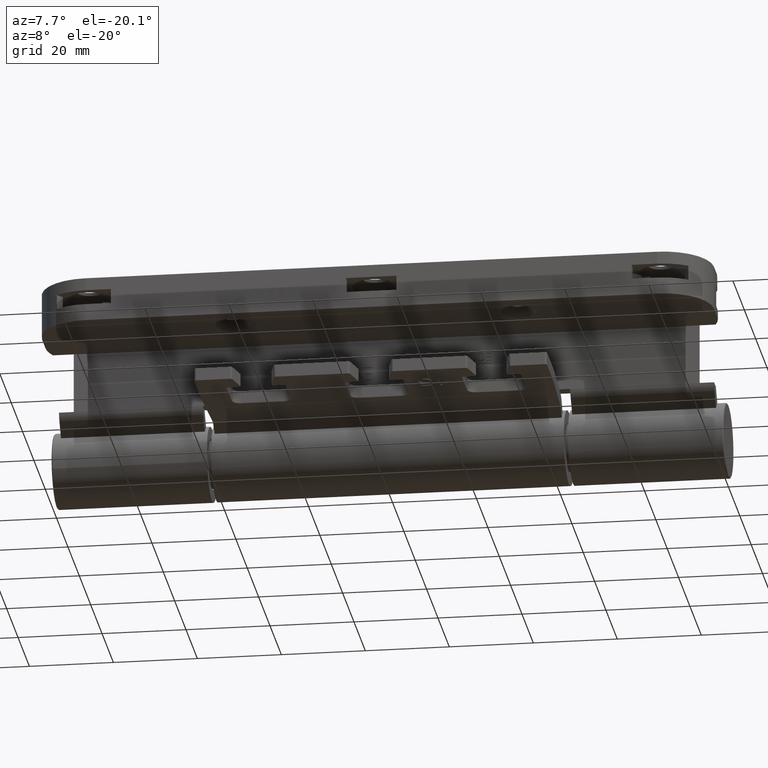
[diagram: clean part render]
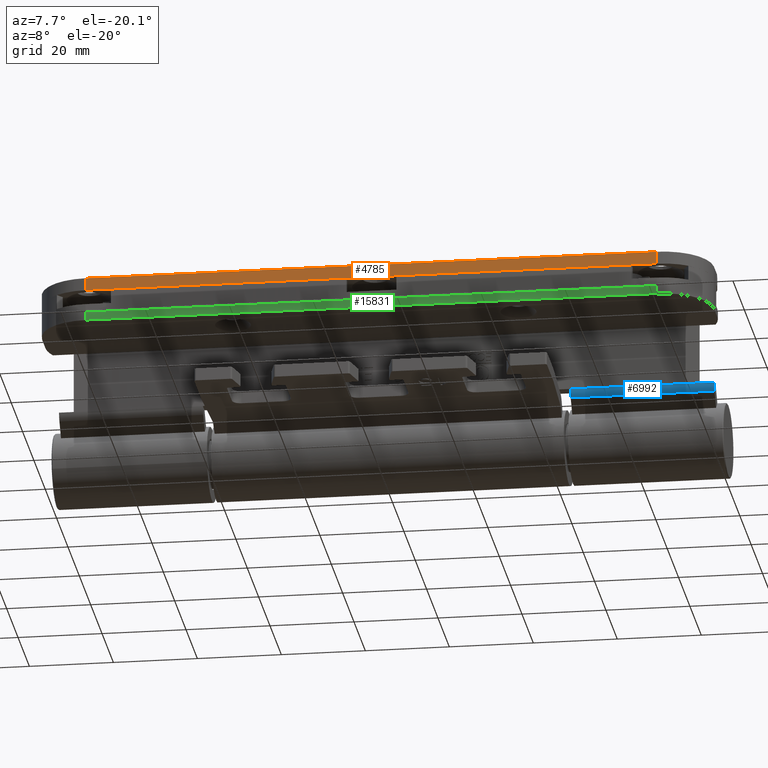
[diagram: same view with three faces highlighted in distinct colors, each labeled with its STEP entity id]
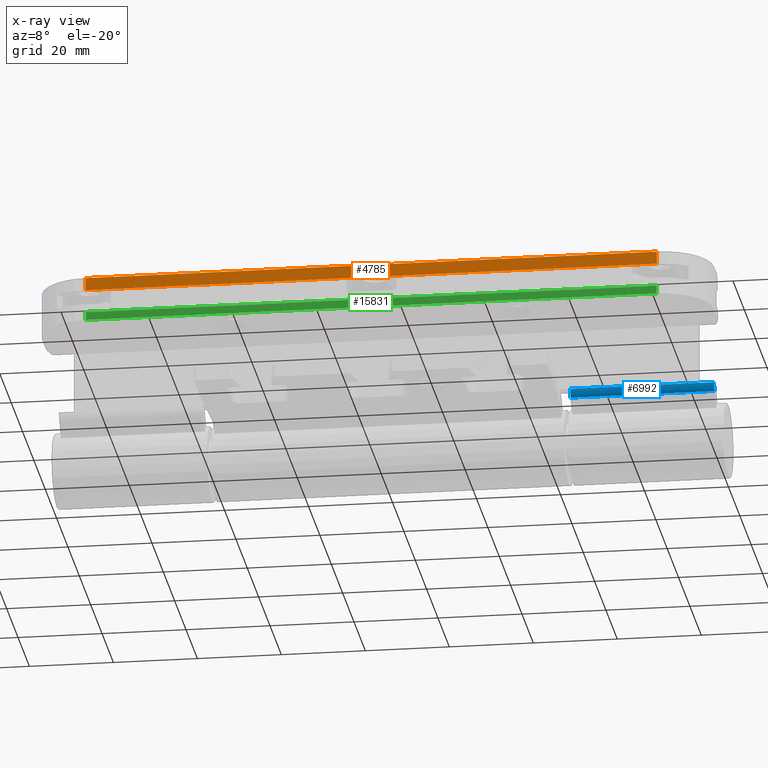
[diagram: x-ray of the same camera — body ghosted, the three highlighted faces saturated]
A machine part, auxiliary view with three faces highlighted in distinct colors.
The next image is the same camera in x-ray (body ghosted, the three faces saturated) — at least one of them is partly hidden behind the body in this view.
Their STEP definitions:

[orange] entity #4785 — the highlighted planar face has unit normal (-0, -1, -0).
#160 = FACE_OUTER_BOUND ( 'NONE', #6850, .T. ) ;
#1174 = CARTESIAN_POINT ( 'NONE',  ( 6.938893903907228378E-15, -68.00000000000000000, 0.000000000000000000 ) ) ;
#1952 = LINE ( 'NONE', #8564, #4529 ) ;
#2608 = CARTESIAN_POINT ( 'NONE',  ( 0.000000000000000000, 68.00000000000000000, 0.000000000000000000 ) ) ;
#2767 = CARTESIAN_POINT ( 'NONE',  ( 0.000000000000000000, 80.00000000000000000, 0.000000000000000000 ) ) ;
#3636 = DIRECTION ( 'NONE',  ( -1.224646799147353207E-16, 4.622231866529366047E-33, -1.000000000000000000 ) ) ;
#3698 = VERTEX_POINT ( 'NONE', #8912 ) ;
#4108 = ORIENTED_EDGE ( 'NONE', *, *, #14173, .T. ) ;
#4529 = VECTOR ( 'NONE', #5309, 1000.000000000000000 ) ;
#4596 = VECTOR ( 'NONE', #5453, 1000.000000000000000 ) ;
#4785 = ADVANCED_FACE ( 'NONE', ( #160 ), #6772, .T. ) ;
#5309 = DIRECTION ( 'NONE',  ( -2.016864910455080876E-32, -1.000000000000000000, 4.622231866529366047E-33 ) ) ;
#5453 = DIRECTION ( 'NONE',  ( 0.000000000000000000, -4.622231866529366047E-33, 1.000000000000000000 ) ) ;
#5731 = AXIS2_PLACEMENT_3D ( 'NONE', #20056, #16934, #3636 ) ;
#6772 = PLANE ( 'NONE',  #5731 ) ;
#6850 = EDGE_LOOP ( 'NONE', ( #16783, #20660, #4108, #20122 ) ) ;
#7198 = EDGE_CURVE ( 'NONE', #21043, #9322, #7649, .T. ) ;
#7649 = LINE ( 'NONE', #10904, #9768 ) ;
#8564 = CARTESIAN_POINT ( 'NONE',  ( 0.000000000000000000, 80.00000000000000000, 3.000000000000002665 ) ) ;
#8912 = CARTESIAN_POINT ( 'NONE',  ( -6.938893903907228378E-14, 68.00000000000000000, 3.000000000000002665 ) ) ;
#9322 = VERTEX_POINT ( 'NONE', #9868 ) ;
#9679 = DIRECTION ( 'NONE',  ( -2.016864910455080876E-32, -1.000000000000000000, 4.622231866529366047E-33 ) ) ;
#9768 = VECTOR ( 'NONE', #20646, 1000.000000000000000 ) ;
#9868 = CARTESIAN_POINT ( 'NONE',  ( -2.081668171172168513E-14, -68.00000000000000000, 3.000000000000002665 ) ) ;
#10089 = LINE ( 'NONE', #13455, #4596 ) ;
#10904 = CARTESIAN_POINT ( 'NONE',  ( 6.938893903907228378E-14, -68.00000000000000000, -2.760696280273790215 ) ) ;
#11486 = VERTEX_POINT ( 'NONE', #2608 ) ;
#13455 = CARTESIAN_POINT ( 'NONE',  ( 2.081668171172168513E-14, 68.00000000000000000, -2.760696280273790215 ) ) ;
#14173 = EDGE_CURVE ( 'NONE', #3698, #9322, #1952, .T. ) ;
#16199 = EDGE_CURVE ( 'NONE', #11486, #3698, #10089, .T. ) ;
#16783 = ORIENTED_EDGE ( 'NONE', *, *, #19867, .F. ) ;
#16934 = DIRECTION ( 'NONE',  ( 1.000000000000000000, 1.929672435669725192E-32, -1.224646799147353207E-16 ) ) ;
#17483 = VECTOR ( 'NONE', #9679, 1000.000000000000000 ) ;
#19867 = EDGE_CURVE ( 'NONE', #11486, #21043, #21285, .T. ) ;
#20056 = CARTESIAN_POINT ( 'NONE',  ( 0.000000000000000000, 80.00000000000000000, 0.000000000000000000 ) ) ;
#20122 = ORIENTED_EDGE ( 'NONE', *, *, #7198, .F. ) ;
#20646 = DIRECTION ( 'NONE',  ( 0.000000000000000000, -4.622231866529366047E-33, 1.000000000000000000 ) ) ;
#20660 = ORIENTED_EDGE ( 'NONE', *, *, #16199, .T. ) ;
#21043 = VERTEX_POINT ( 'NONE', #1174 ) ;
#21285 = LINE ( 'NONE', #2767, #17483 ) ;

[blue] entity #6992 — the highlighted cylindrical surface (edge-blend (fillet) strip) has radius 3.001 mm, axis along (1, -0, -0).
#1256 = DIRECTION ( 'NONE',  ( -2.016864910455080876E-32, -1.000000000000000000, 4.622231866529366047E-33 ) ) ;
#1598 = VERTEX_POINT ( 'NONE', #19716 ) ;
#2596 = AXIS2_PLACEMENT_3D ( 'NONE', #7239, #5282, #11888 ) ;
#3184 = VECTOR ( 'NONE', #10023, 1000.000000000000000 ) ;
#3230 = CYLINDRICAL_SURFACE ( 'NONE', #14611, 3.001000000000000334 ) ;
#3425 = DIRECTION ( 'NONE',  ( 6.123233995736767268E-17, 1.540743955509788682E-32, -1.000000000000000000 ) ) ;
#3427 = LINE ( 'NONE', #15116, #3184 ) ;
#3431 = FACE_OUTER_BOUND ( 'NONE', #10632, .T. ) ;
#3900 = LINE ( 'NONE', #10496, #17790 ) ;
#4281 = AXIS2_PLACEMENT_3D ( 'NONE', #19946, #15179, #5130 ) ;
#4647 = ORIENTED_EDGE ( 'NONE', *, *, #12235, .T. ) ;
#5130 = DIRECTION ( 'NONE',  ( -1.000000000000000000, 0.000000000000000000, 0.000000000000000000 ) ) ;
#5282 = DIRECTION ( 'NONE',  ( 2.016864910455080876E-32, 1.000000000000000000, -4.622231866529366047E-33 ) ) ;
#5419 = ORIENTED_EDGE ( 'NONE', *, *, #5878, .F. ) ;
#5876 = CARTESIAN_POINT ( 'NONE',  ( -27.72775186094226996, -43.75000000000000000, 25.45879772629297477 ) ) ;
#5878 = EDGE_CURVE ( 'NONE', #18609, #1598, #3427, .T. ) ;
#5994 = VECTOR ( 'NONE', #3425, 1000.000000000000000 ) ;
#6045 = CARTESIAN_POINT ( 'NONE',  ( -27.00000000000000355, -74.50000000000000000, -26.35576528651913009 ) ) ;
#6156 = ORIENTED_EDGE ( 'NONE', *, *, #17170, .T. ) ;
#6336 = VECTOR ( 'NONE', #1256, 1000.000000000000000 ) ;
#6992 = ADVANCED_FACE ( 'NONE', ( #3431 ), #3230, .T. ) ;
#7049 = CIRCLE ( 'NONE', #4281, 3.001000000000000334 ) ;
#7239 = CARTESIAN_POINT ( 'NONE',  ( -30.00100000000002609, -78.00000000000000000, 23.49962854057411477 ) ) ;
#7620 = EDGE_CURVE ( 'NONE', #18609, #9449, #9282, .T. ) ;
#7841 = EDGE_CURVE ( 'NONE', #17793, #16285, #12728, .T. ) ;
#9282 = LINE ( 'NONE', #6045, #5994 ) ;
#9449 = VERTEX_POINT ( 'NONE', #13649 ) ;
#10023 = DIRECTION ( 'NONE',  ( -2.016864910455080876E-32, -1.000000000000000000, 4.622231866529366047E-33 ) ) ;
#10027 = CARTESIAN_POINT ( 'NONE',  ( -30.00100000000003675, 80.00000000000000000, 23.49962854057411477 ) ) ;
#10496 = CARTESIAN_POINT ( 'NONE',  ( -27.00000000000003908, 80.00000000000000000, 23.49962854057408279 ) ) ;
#10632 = EDGE_LOOP ( 'NONE', ( #13438, #4647, #5419, #12823, #15510, #6156 ) ) ;
#11060 = CARTESIAN_POINT ( 'NONE',  ( -27.72775186094223443, -78.00000000000000000, 25.45879772629297477 ) ) ;
#11888 = DIRECTION ( 'NONE',  ( 0.000000000000000000, 0.000000000000000000, 1.000000000000000000 ) ) ;
#11940 = CIRCLE ( 'NONE', #2596, 3.001000000000000334 ) ;
#11944 = EDGE_CURVE ( 'NONE', #12074, #9449, #3900, .T. ) ;
#12074 = VERTEX_POINT ( 'NONE', #13184 ) ;
#12235 = EDGE_CURVE ( 'NONE', #16285, #1598, #11940, .T. ) ;
#12517 = CARTESIAN_POINT ( 'NONE',  ( -27.72775186094226996, 80.00000000000000000, 25.45879772629296411 ) ) ;
#12728 = LINE ( 'NONE', #12517, #6336 ) ;
#12823 = ORIENTED_EDGE ( 'NONE', *, *, #7620, .T. ) ;
#13184 = CARTESIAN_POINT ( 'NONE',  ( -27.00000000000003908, -43.75000000000000000, 23.49962854057409345 ) ) ;
#13438 = ORIENTED_EDGE ( 'NONE', *, *, #7841, .T. ) ;
#13565 = CARTESIAN_POINT ( 'NONE',  ( -27.00000000000001066, -74.50000000000000000, 23.50028137935640515 ) ) ;
#13649 = CARTESIAN_POINT ( 'NONE',  ( -27.00000000000001066, -74.50000000000000000, 23.49962854057409345 ) ) ;
#14611 = AXIS2_PLACEMENT_3D ( 'NONE', #10027, #19761, #16746 ) ;
#15116 = CARTESIAN_POINT ( 'NONE',  ( -27.00000000000001066, 0.000000000000000000, 23.50028137935642647 ) ) ;
#15179 = DIRECTION ( 'NONE',  ( -2.016864910455080876E-32, -1.000000000000000000, 4.622231866529366047E-33 ) ) ;
#15510 = ORIENTED_EDGE ( 'NONE', *, *, #11944, .F. ) ;
#16285 = VERTEX_POINT ( 'NONE', #11060 ) ;
#16746 = DIRECTION ( 'NONE',  ( 0.000000000000000000, 0.000000000000000000, -1.000000000000000000 ) ) ;
#17113 = DIRECTION ( 'NONE',  ( -2.016864910455080876E-32, -1.000000000000000000, 4.622231866529366047E-33 ) ) ;
#17170 = EDGE_CURVE ( 'NONE', #12074, #17793, #7049, .T. ) ;
#17790 = VECTOR ( 'NONE', #17113, 1000.000000000000000 ) ;
#17793 = VERTEX_POINT ( 'NONE', #5876 ) ;
#18609 = VERTEX_POINT ( 'NONE', #13565 ) ;
#19716 = CARTESIAN_POINT ( 'NONE',  ( -27.00000000000000355, -78.00000000000000000, 23.50028137935640515 ) ) ;
#19761 = DIRECTION ( 'NONE',  ( -2.016864910455080876E-32, -1.000000000000000000, 4.622231866529366047E-33 ) ) ;
#19946 = CARTESIAN_POINT ( 'NONE',  ( -30.00100000000003675, -43.75000000000000000, 23.49962854057411477 ) ) ;

[green] entity #15831 — the highlighted planar face has unit normal (-0, 1, 0).
#712 = CARTESIAN_POINT ( 'NONE',  ( -11.50000000000000355, -67.99999999999991473, 2.000000000000001776 ) ) ;
#1056 = EDGE_CURVE ( 'NONE', #14409, #13389, #17191, .T. ) ;
#1120 = AXIS2_PLACEMENT_3D ( 'NONE', #18806, #2351, #11777 ) ;
#1460 = CARTESIAN_POINT ( 'NONE',  ( -11.50000000000000355, -67.99999999999991473, 2.000000000000001776 ) ) ;
#2249 = FACE_OUTER_BOUND ( 'NONE', #17584, .T. ) ;
#2351 = DIRECTION ( 'NONE',  ( 1.000000000000000000, -8.404923899251116987E-17, 5.065472258955107201E-17 ) ) ;
#3582 = VERTEX_POINT ( 'NONE', #18563 ) ;
#5523 = CARTESIAN_POINT ( 'NONE',  ( -11.50000000000008704, 67.99999999999992895, 2.000000000000047073 ) ) ;
#6856 = ORIENTED_EDGE ( 'NONE', *, *, #1056, .F. ) ;
#7247 = ORIENTED_EDGE ( 'NONE', *, *, #13252, .F. ) ;
#8648 = VECTOR ( 'NONE', #9687, 1000.000000000000000 ) ;
#8714 = CARTESIAN_POINT ( 'NONE',  ( -11.50000000000000355, -67.99999999999991473, 2.000000000000001776 ) ) ;
#9076 = LINE ( 'NONE', #5523, #20890 ) ;
#9687 = DIRECTION ( 'NONE',  ( 8.404923899251118219E-17, -1.000000000000000000, -3.608224830031758756E-16 ) ) ;
#11221 = VECTOR ( 'NONE', #12979, 1000.000000000000000 ) ;
#11777 = DIRECTION ( 'NONE',  ( 5.065472258955104120E-17, -3.608224830031758756E-16, -1.000000000000000000 ) ) ;
#11881 = EDGE_CURVE ( 'NONE', #14111, #3582, #9076, .T. ) ;
#12862 = CARTESIAN_POINT ( 'NONE',  ( -11.50000000000000355, -67.99999999999991473, 0.000000000000000000 ) ) ;
#12979 = DIRECTION ( 'NONE',  ( 8.404923899251118219E-17, -1.000000000000000000, -3.608224830031758756E-16 ) ) ;
#13252 = EDGE_CURVE ( 'NONE', #14111, #14409, #16293, .T. ) ;
#13389 = VERTEX_POINT ( 'NONE', #20059 ) ;
#13921 = DIRECTION ( 'NONE',  ( 5.065472258955104120E-17, -3.608224830031758756E-16, -1.000000000000000000 ) ) ;
#14111 = VERTEX_POINT ( 'NONE', #16890 ) ;
#14409 = VERTEX_POINT ( 'NONE', #8714 ) ;
#14794 = ORIENTED_EDGE ( 'NONE', *, *, #11881, .T. ) ;
#15676 = DIRECTION ( 'NONE',  ( 5.065472258955104120E-17, -3.608224830031758756E-16, -1.000000000000000000 ) ) ;
#15831 = ADVANCED_FACE ( 'NONE', ( #2249 ), #20424, .F. ) ;
#16293 = LINE ( 'NONE', #1460, #8648 ) ;
#16349 = VECTOR ( 'NONE', #13921, 1000.000000000000000 ) ;
#16890 = CARTESIAN_POINT ( 'NONE',  ( -11.50000000000008704, 67.99999999999992895, 2.000000000000047073 ) ) ;
#17191 = LINE ( 'NONE', #712, #16349 ) ;
#17372 = ORIENTED_EDGE ( 'NONE', *, *, #20576, .T. ) ;
#17584 = EDGE_LOOP ( 'NONE', ( #17372, #6856, #7247, #14794 ) ) ;
#18563 = CARTESIAN_POINT ( 'NONE',  ( -11.50000000000008704, 67.99999999999992895, 4.510281037539698445E-14 ) ) ;
#18806 = CARTESIAN_POINT ( 'NONE',  ( -11.50000000000000355, -67.99999999999991473, 2.000000000000001776 ) ) ;
#19669 = LINE ( 'NONE', #12862, #11221 ) ;
#20059 = CARTESIAN_POINT ( 'NONE',  ( -11.50000000000000355, -67.99999999999991473, 0.000000000000000000 ) ) ;
#20424 = PLANE ( 'NONE',  #1120 ) ;
#20576 = EDGE_CURVE ( 'NONE', #3582, #13389, #19669, .T. ) ;
#20890 = VECTOR ( 'NONE', #15676, 1000.000000000000000 ) ;